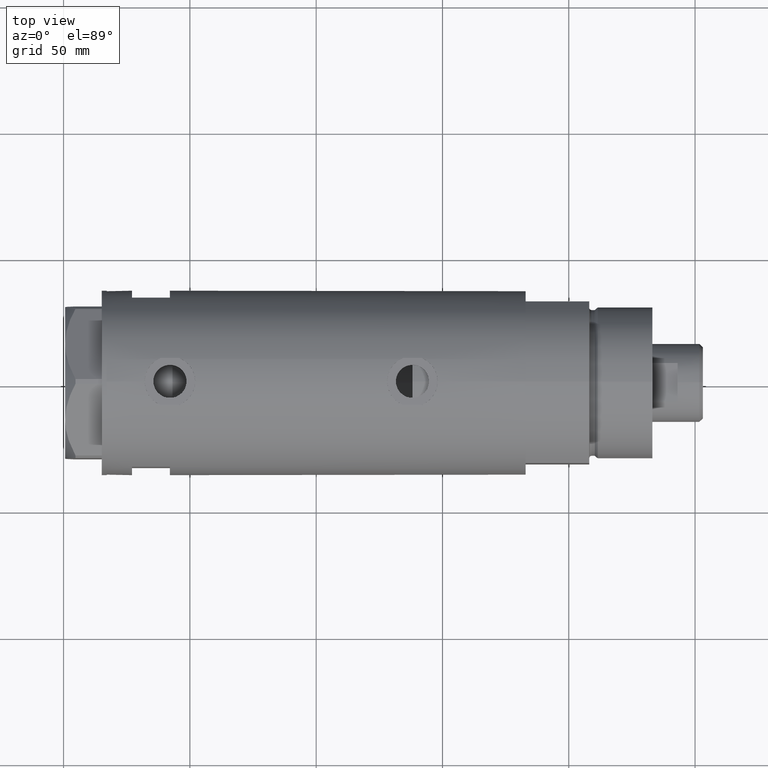
[diagram: clean part render]
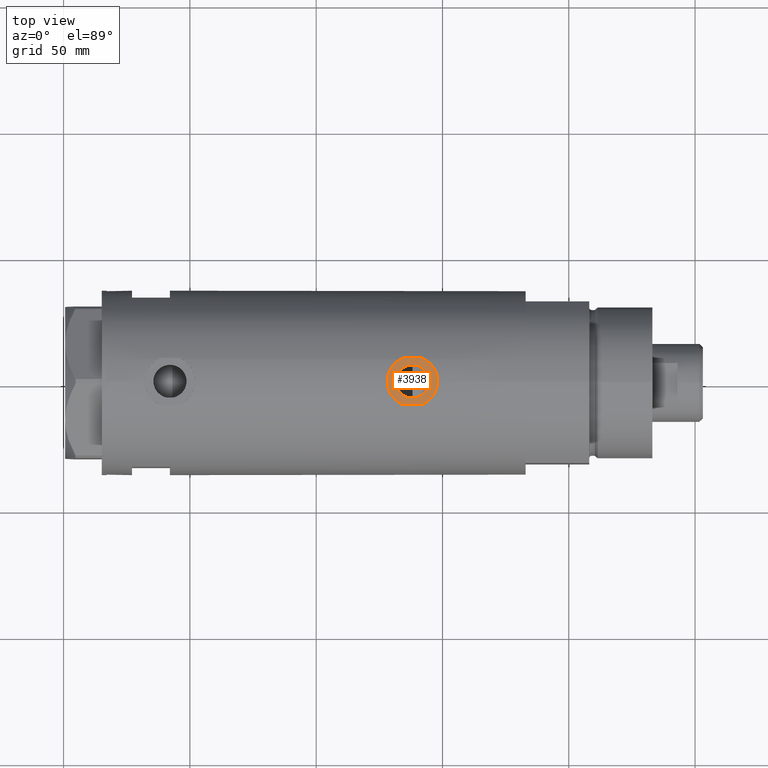
[diagram: same view with one face highlighted and labeled with its STEP entity id]
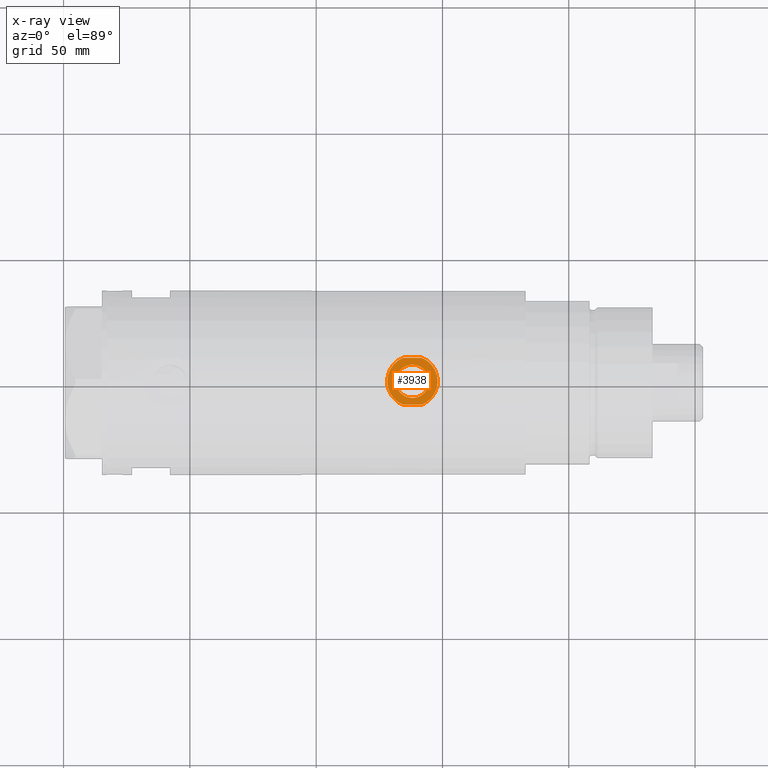
[diagram: x-ray of the same camera — body ghosted, the highlighted face saturated]
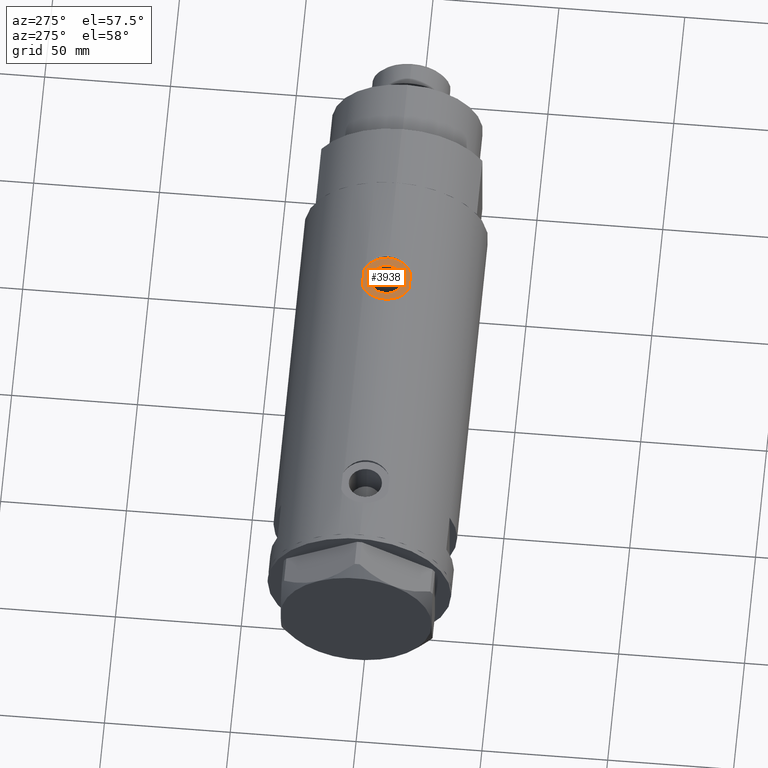
[diagram: same view with one face highlighted and labeled with its STEP entity id]
A machine part, top view. The second image highlights one B-rep face of the part: STEP entity #3938.
The next image is the same camera in x-ray: the body ghosted, the highlighted face saturated — about 0% of this face is hidden behind the body in this view.
A second angle (auxiliary view) of the same face is appended — the face is thin or edge-on in the first view.
In plain terms, the highlighted planar face has unit normal (0, 0, 1).
Its self-contained STEP definition (entity closure, byte-faithful):
#4 = DIRECTION ( 'NONE',  ( 1.000000000000000000, 0.000000000000000000, 0.000000000000000000 ) ) ;
#62 = DIRECTION ( 'NONE',  ( 1.000000000000000000, 0.000000000000000000, 0.000000000000000000 ) ) ;
#189 = FACE_OUTER_BOUND ( 'NONE', #3912, .T. ) ;
#221 = CARTESIAN_POINT ( 'NONE',  ( 35.29999999999999716, -9.282241108697837362, -41.82021504754764862 ) ) ;
#557 = CIRCLE ( 'NONE', #1997, 6.580000000000002736 ) ;
#608 = DIRECTION ( 'NONE',  ( 1.000000000000000000, 0.000000000000000000, 0.000000000000000000 ) ) ;
#685 = ORIENTED_EDGE ( 'NONE', *, *, #2287, .F. ) ;
#735 = CARTESIAN_POINT ( 'NONE',  ( 35.29999999999999716, 8.058175938389587461E-16, -31.51999999999999957 ) ) ;
#791 = CARTESIAN_POINT ( 'NONE',  ( 35.29999999999999716, 0.000000000000000000, -38.10000000000000142 ) ) ;
#914 = VECTOR ( 'NONE', #3320, 1000.000000000000000 ) ;
#918 = AXIS2_PLACEMENT_3D ( 'NONE', #2021, #3851, #2962 ) ;
#993 = ORIENTED_EDGE ( 'NONE', *, *, #1321, .T. ) ;
#1159 = VERTEX_POINT ( 'NONE', #2387 ) ;
#1192 = FACE_BOUND ( 'NONE', #3285, .T. ) ;
#1321 = EDGE_CURVE ( 'NONE', #5215, #4623, #4077, .T. ) ;
#1343 = DIRECTION ( 'NONE',  ( 0.000000000000000000, 0.000000000000000000, -1.000000000000000000 ) ) ;
#1353 = DIRECTION ( 'NONE',  ( 0.000000000000000000, 0.000000000000000000, -1.000000000000000000 ) ) ;
#1400 = VERTEX_POINT ( 'NONE', #221 ) ;
#1433 = ORIENTED_EDGE ( 'NONE', *, *, #2879, .F. ) ;
#1496 = CIRCLE ( 'NONE', #3280, 10.00000000000000178 ) ;
#1503 = DIRECTION ( 'NONE',  ( 0.000000000000000000, 0.000000000000000000, 1.000000000000000000 ) ) ;
#1531 = LINE ( 'NONE', #2793, #914 ) ;
#1578 = CARTESIAN_POINT ( 'NONE',  ( 35.29999999999999716, 9.282241108697837362, -34.37978495245235422 ) ) ;
#1913 = DIRECTION ( 'NONE',  ( 1.000000000000000000, 0.000000000000000000, 0.000000000000000000 ) ) ;
#1945 = EDGE_CURVE ( 'NONE', #1400, #5215, #5449, .T. ) ;
#1949 = LINE ( 'NONE', #2031, #5364 ) ;
#1997 = AXIS2_PLACEMENT_3D ( 'NONE', #791, #5314, #5769 ) ;
#2001 = DIRECTION ( 'NONE',  ( 0.000000000000000000, 0.000000000000000000, -1.000000000000000000 ) ) ;
#2021 = CARTESIAN_POINT ( 'NONE',  ( 35.29999999999999716, 0.000000000000000000, -38.10000000000000142 ) ) ;
#2031 = CARTESIAN_POINT ( 'NONE',  ( 35.29999999999999716, -9.282241108697837362, -82.90000000000000568 ) ) ;
#2107 = VERTEX_POINT ( 'NONE', #1578 ) ;
#2287 = EDGE_CURVE ( 'NONE', #4036, #4143, #3128, .T. ) ;
#2387 = CARTESIAN_POINT ( 'NONE',  ( 35.29999999999999716, -9.282241108697837362, -34.37978495245235422 ) ) ;
#2440 = EDGE_CURVE ( 'NONE', #4143, #4036, #557, .T. ) ;
#2556 = AXIS2_PLACEMENT_3D ( 'NONE', #4480, #4, #1343 ) ;
#2612 = ORIENTED_EDGE ( 'NONE', *, *, #2440, .F. ) ;
#2793 = CARTESIAN_POINT ( 'NONE',  ( 35.29999999999999716, 9.282241108697837362, -82.90000000000000568 ) ) ;
#2879 = EDGE_CURVE ( 'NONE', #1400, #1159, #1949, .T. ) ;
#2962 = DIRECTION ( 'NONE',  ( 0.000000000000000000, 0.000000000000000000, -1.000000000000000000 ) ) ;
#3128 = CIRCLE ( 'NONE', #3995, 6.580000000000002736 ) ;
#3280 = AXIS2_PLACEMENT_3D ( 'NONE', #5489, #1913, #1353 ) ;
#3285 = EDGE_LOOP ( 'NONE', ( #2612, #685 ) ) ;
#3320 = DIRECTION ( 'NONE',  ( -0.000000000000000000, -0.000000000000000000, -1.000000000000000000 ) ) ;
#3337 = EDGE_CURVE ( 'NONE', #2107, #4623, #1531, .T. ) ;
#3567 = CARTESIAN_POINT ( 'NONE',  ( 35.29999999999999716, 0.000000000000000000, -48.10000000000000142 ) ) ;
#3851 = DIRECTION ( 'NONE',  ( 1.000000000000000000, 0.000000000000000000, 0.000000000000000000 ) ) ;
#3912 = EDGE_LOOP ( 'NONE', ( #4686, #1433, #5067, #993, #5654 ) ) ;
#3938 = ADVANCED_FACE ( 'NONE', ( #1192, #189 ), #5807, .T. ) ;
#3995 = AXIS2_PLACEMENT_3D ( 'NONE', #5532, #62, #4650 ) ;
#4036 = VERTEX_POINT ( 'NONE', #735 ) ;
#4077 = CIRCLE ( 'NONE', #5919, 10.00000000000000178 ) ;
#4143 = VERTEX_POINT ( 'NONE', #5008 ) ;
#4480 = CARTESIAN_POINT ( 'NONE',  ( 35.29999999999999716, 0.000000000000000000, -38.10000000000000142 ) ) ;
#4623 = VERTEX_POINT ( 'NONE', #5427 ) ;
#4650 = DIRECTION ( 'NONE',  ( 0.000000000000000000, 0.000000000000000000, -1.000000000000000000 ) ) ;
#4686 = ORIENTED_EDGE ( 'NONE', *, *, #5753, .T. ) ;
#4723 = CARTESIAN_POINT ( 'NONE',  ( 35.29999999999999716, 0.000000000000000000, -38.10000000000000142 ) ) ;
#5008 = CARTESIAN_POINT ( 'NONE',  ( 35.29999999999999716, 0.000000000000000000, -44.68000000000000682 ) ) ;
#5067 = ORIENTED_EDGE ( 'NONE', *, *, #1945, .T. ) ;
#5215 = VERTEX_POINT ( 'NONE', #3567 ) ;
#5314 = DIRECTION ( 'NONE',  ( 1.000000000000000000, 0.000000000000000000, 0.000000000000000000 ) ) ;
#5364 = VECTOR ( 'NONE', #1503, 1000.000000000000000 ) ;
#5427 = CARTESIAN_POINT ( 'NONE',  ( 35.29999999999999716, 9.282241108697837362, -41.82021504754764862 ) ) ;
#5449 = CIRCLE ( 'NONE', #2556, 10.00000000000000178 ) ;
#5489 = CARTESIAN_POINT ( 'NONE',  ( 35.29999999999999716, 0.000000000000000000, -38.10000000000000142 ) ) ;
#5532 = CARTESIAN_POINT ( 'NONE',  ( 35.29999999999999716, 0.000000000000000000, -38.10000000000000142 ) ) ;
#5654 = ORIENTED_EDGE ( 'NONE', *, *, #3337, .F. ) ;
#5753 = EDGE_CURVE ( 'NONE', #2107, #1159, #1496, .T. ) ;
#5769 = DIRECTION ( 'NONE',  ( 0.000000000000000000, 0.000000000000000000, -1.000000000000000000 ) ) ;
#5807 = PLANE ( 'NONE',  #918 ) ;
#5919 = AXIS2_PLACEMENT_3D ( 'NONE', #4723, #608, #2001 ) ;